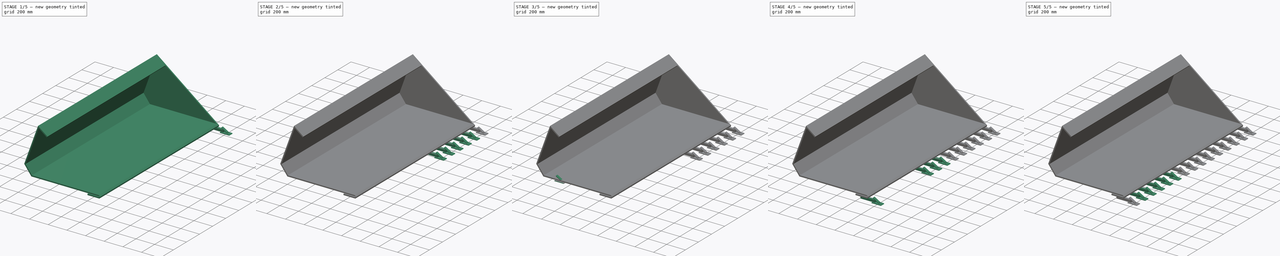
[diagram: build sequence overview — one tinted view per stage of 5, left to right]
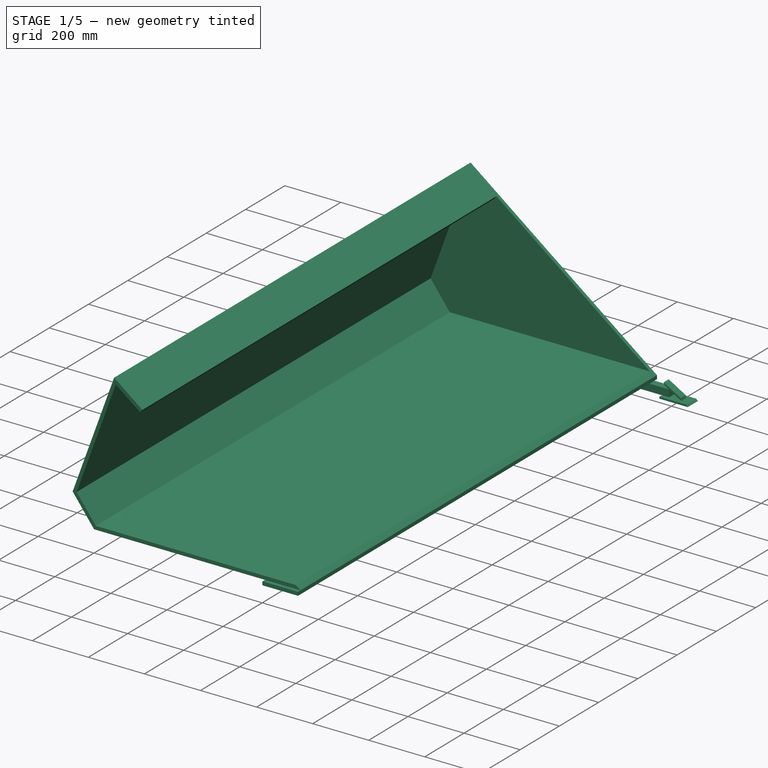
[diagram: stage 1 of 5 — iso view after this stage's code; geometry added in this stage tinted green]
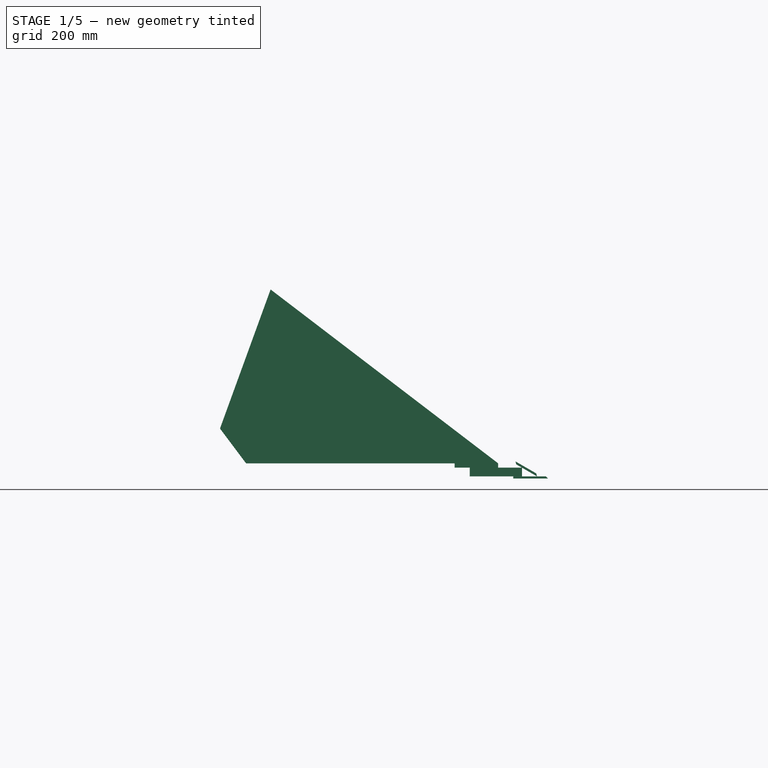
[diagram: stage 1 of 5 — front view after this stage's code; geometry added in this stage tinted green]
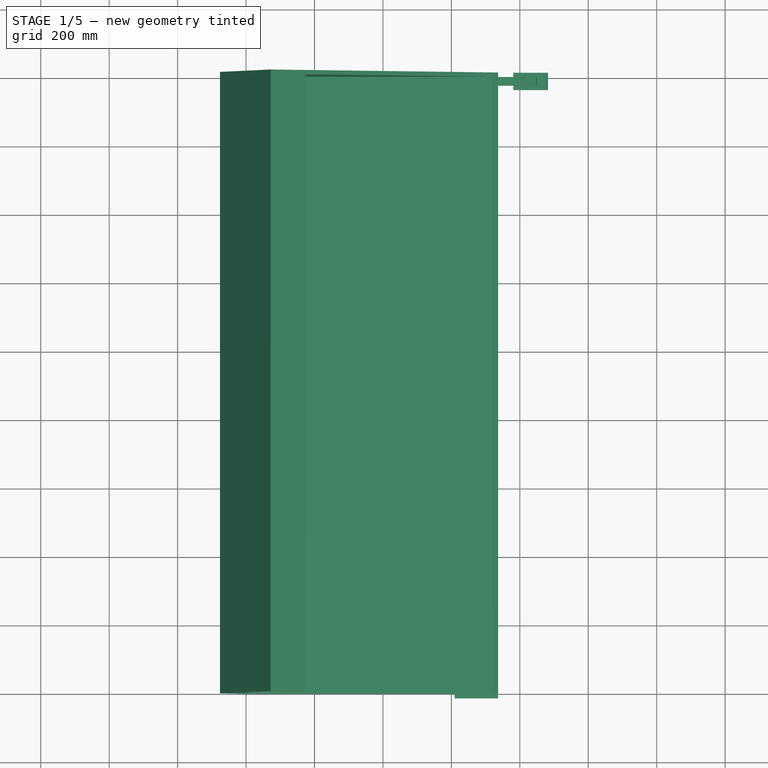
[diagram: stage 1 of 5 — top view after this stage's code; geometry added in this stage tinted green]
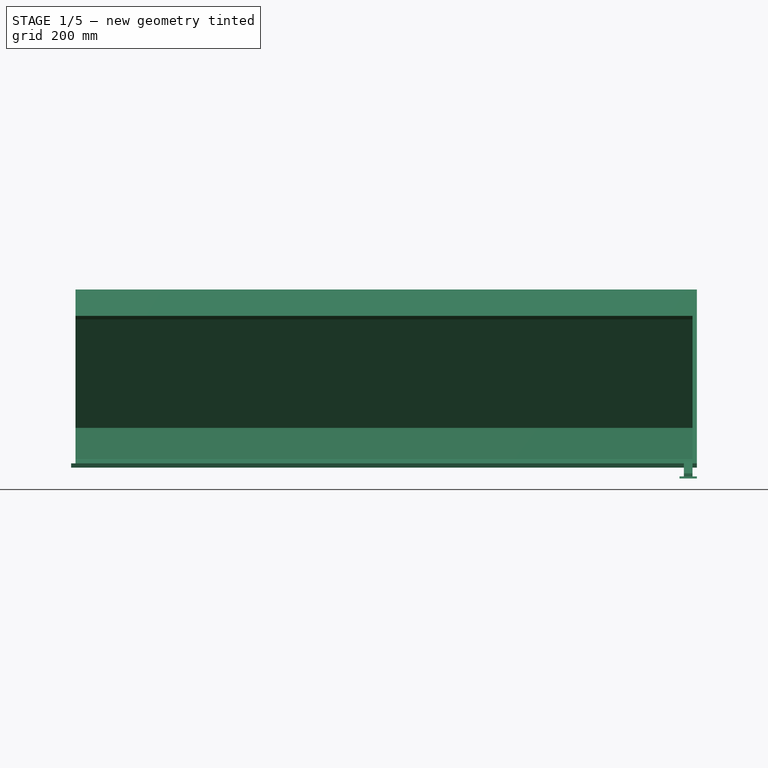
[diagram: stage 1 of 5 — right view after this stage's code; geometry added in this stage tinted green]
FCSTD DOCUMENT  (FreeCAD 0.16R6712 (Git))
Label: LT_72in_bucket
License: All rights reserved
LicenseURL: http://en.wikipedia.org/wiki/All_rights_reserved
objects: Part::MultiFuse×15, Part::Feature×5, App::FeaturePython×5, Part::Box×4, App::DocumentObjectGroup×3, Sketcher::SketchObject×2, Part::Chamfer×2, PartDesign::Pad×2, Part::FeaturePython×1
note: 33 computed .brp shape members not serialized (recipe doc carries the construction recipe); baked Part::Feature solids carry a one-line shape summary decoded from their .brp

FEATURE [PartDesign::Pad] Pad
  Length = 12.7
  Length2 = 100
  Placement = pos=(0,0,0) rot=(1,0,0;1.5708rad)
  Sketch = -> Sketch
  Type = 0
FEATURE [Part::FeaturePython] Clone  label="Clone of Pad"  # Draft clone (typed FeaturePython)
  Objects = -> [Pad]
  Placement = pos=(0,1816.1,0) rot=(1,0,0;1.5708rad)
  Scale = (1,1,1)
FEATURE [Sketcher::SketchObject] Sketch001
  Placement = pos=(0,1803.4,0) rot=(1,0,0;1.5708rad)
  Support = -> Clone [Face6]
  sketch-geometry (10):
    g0: LineSegment StartX=71.7175 StartY=508 StartZ=0 EndX=-76.2 EndY=101.6 EndZ=0
    g1: LineSegment StartX=-76.2 StartY=101.6 StartZ=0 EndX=0 EndY=0 EndZ=0
    g2: LineSegment StartX=0 StartY=0 StartZ=0 EndX=736.6 EndY=0 EndZ=0
    g3: LineSegment StartX=736.6 StartY=0 StartZ=0 EndX=719.978 EndY=12.7 EndZ=0
    g4: LineSegment StartX=719.978 StartY=12.7 StartZ=0 EndX=6.35 EndY=12.7 EndZ=0
    g5: LineSegment StartX=6.35 StartY=12.7 StartZ=0 EndX=-61.9139 EndY=103.718 EndZ=0
    g6: LineSegment StartX=71.7175 StartY=508 StartZ=0 EndX=172.633 EndY=430.896 EndZ=0
    g7: LineSegment StartX=172.633 StartY=430.896 StartZ=0 EndX=164.923 EndY=420.804 EndZ=0
    g8: LineSegment StartX=164.923 StartY=420.804 StartZ=0 EndX=77.7404 EndY=487.416 EndZ=0
    g9: LineSegment StartX=77.7404 StartY=487.416 StartZ=0 EndX=-61.9139 EndY=103.718 EndZ=0
  constraints (12):
    c: Coincident(g0,g1)
    c: Coincident(g1,g2)
    c: Coincident(g2,g3)
    c: Coincident(g3,g4)
    c: Horizontal(g4)
    c: Coincident(g4,g5)
    c: Coincident(g0,g6)
    c: Coincident(g6,g7)
    c: Coincident(g7,g8)
    c: Coincident(g8,g9)
    c: Coincident(g9,g5)
    c: Distance(g6) = 127
FEATURE [PartDesign::Pad] Pad001
  Length = 1803.4
  Length2 = 100
  Placement = pos=(0,1816.1,0) rot=(1,0,0;1.5708rad)
  Sketch = -> Sketch001
  Type = 0
FEATURE [Part::MultiFuse] Fusion015  label="Tooth Bar014"
  Placement = pos=(653.821,1778,-38.1) rot=(0,0,1;0rad)
FEATURE [Part::Box] Box003  label="Cube001"
  Height = 12.7
  Length = 127
  Placement = pos=(609.6,-12.7,-12.7) rot=(0,0,1;0rad)
  Width = 1828.8
FEATURE [App::DocumentObjectGroup] Group  label="Teeth"
  Group = -> [Fusion009,Fusion007,Fusion013,Fusion012,Fusion015,Fusion006,Fusion008,Fusion014,Fusion001,Fusion002,Fusion005,Box003,Fusion003,Fusion004,Fusion010,Fusion011]
FEATURE [App::DocumentObjectGroup] Group001  label="Bucket"
  Group = -> [Clone,Pad,Pad001]
FEATURE [Part::Feature] Fusion016  label="72in bucket"
  Placement = pos=(-1288.89,-2089.48,-1213.68) rot=(0,0,1;0rad)
  shape: bbox 958.6 x 1829 x 552.5 mm, 342 faces, 25 solids (baked)
FEATURE [Part::Feature] Pad001001  label="45in FQA"
  Placement = pos=(-1374.04,-616.281,-1108.83) rot=(-0.171088,0.171088,-0.970288;1.60095rad)
  shape: bbox 218.1 x 1162 x 414.9 mm, 56 faces (baked)
FEATURE [Part::Feature] Fusion004003004003  label="MQA"
  Placement = pos=(-1447.47,-662.644,-1123.92) rot=(-0.171088,0.171088,-0.970288;1.60095rad)
  shape: bbox 244.1 x 375.9 x 422.3 mm, 114 faces (baked)
FEATURE [App::FeaturePython] axialConstraint01  label="FQA-bucket"  # a2plus constraint (typed FeaturePython)
  Object1 = Fusion016
  Object2 = Pad001001
  SubElement1 = Edge15
  SubElement2 = Edge55
  Type = axial
  directionConstraint = 0
  lockRotation = false
FEATURE [App::FeaturePython] planeConstraint01  label="MQA 1"  # a2plus constraint (typed FeaturePython)
  Object1 = Pad001001
  Object2 = Fusion004003004003
  SubElement1 = Face16
  SubElement2 = Face29
  Type = plane
  directionConstraint = 0
  offset = 0
FEATURE [App::FeaturePython] planeConstraint02  label="MQA 2"  # a2plus constraint (typed FeaturePython)
  Object1 = Pad001001
  Object2 = Fusion004003004003
  SubElement1 = Face35
  SubElement2 = Face28
  Type = plane
  directionConstraint = 0
  offset = 0
FEATURE [App::FeaturePython] planeConstraint03  label="MQA 3"  # a2plus constraint (typed FeaturePython)
  Object1 = Fusion004003004003
  Object2 = Pad001001
  SubElement1 = Face5
  SubElement2 = Face18
  Type = plane
  directionConstraint = 1
  offset = 0
FEATURE [Part::Feature] Part__Mirroring001  label="MQA (Mirror #1)"
  Placement = pos=(-1e-12,-2375.56,-2e-12) rot=(0,0,1;0rad)
  shape: bbox 244.1 x 375.9 x 422.3 mm, 114 faces (baked)
FEATURE [App::FeaturePython] circularEdgeConstraint01  label="Mirror MQA"  # a2plus constraint (typed FeaturePython)
  Object1 = Fusion004003004003
  Object2 = Part__Mirroring001
  SubElement1 = Edge21
  SubElement2 = Edge21
  Type = circularEdge
  directionConstraint = 0
  lockRotation = false
  offset = 1143
FEATURE [App::DocumentObjectGroup] Group002  label="Constraints"
  Group = -> [axialConstraint01,planeConstraint01,planeConstraint02,planeConstraint03,circularEdgeConstraint01]
FEATURE [Part::Feature] Compound001  label="LT bucket"
  Placement = pos=(0,-2540,0) rot=(0,0,1;0rad)
  shape: bbox 1072 x 1829 x 552.5 mm, 626 faces, 28 solids (baked)
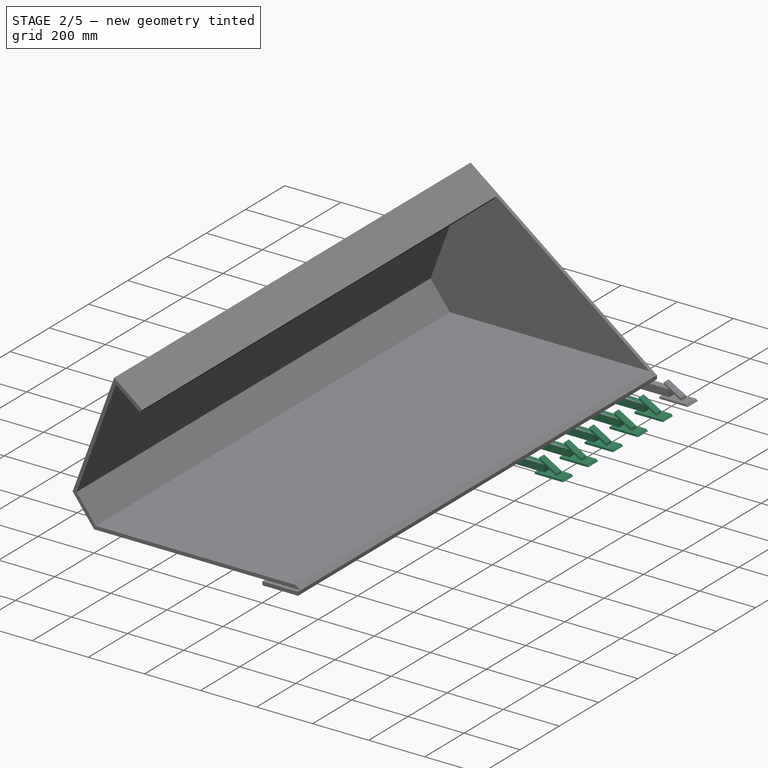
[diagram: stage 2 of 5 — iso view after this stage's code; geometry added in this stage tinted green]
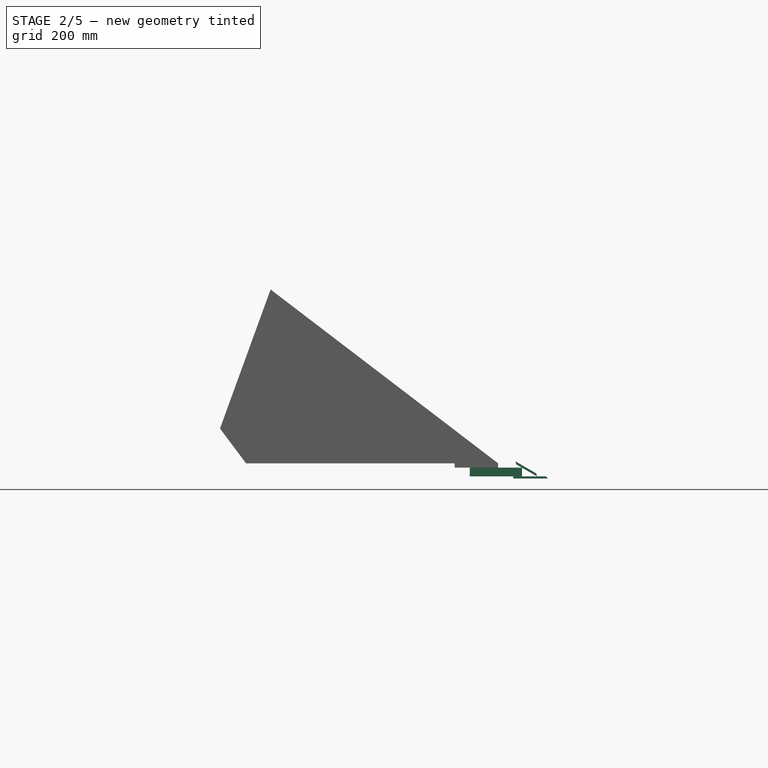
[diagram: stage 2 of 5 — front view after this stage's code; geometry added in this stage tinted green]
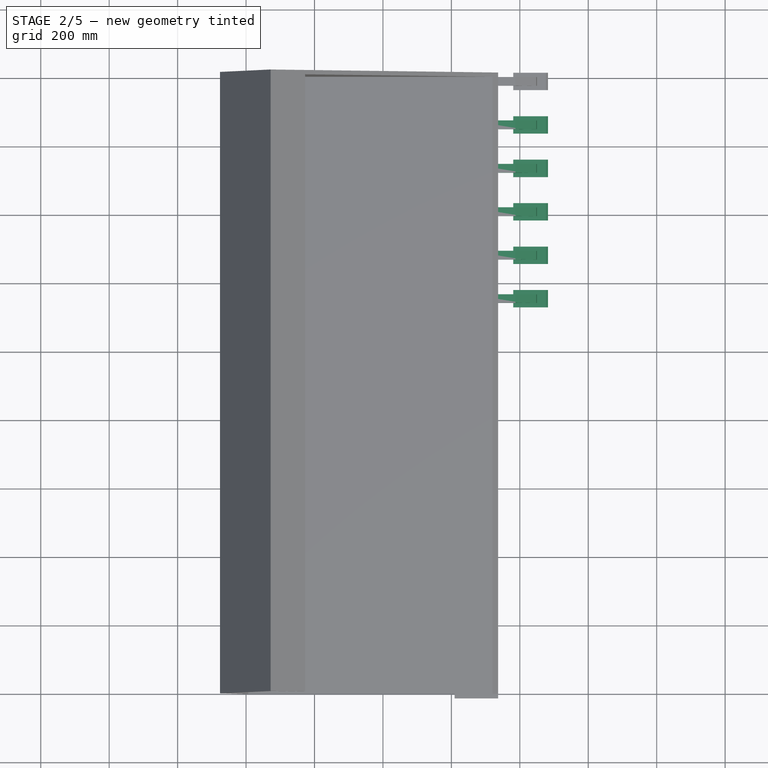
[diagram: stage 2 of 5 — top view after this stage's code; geometry added in this stage tinted green]
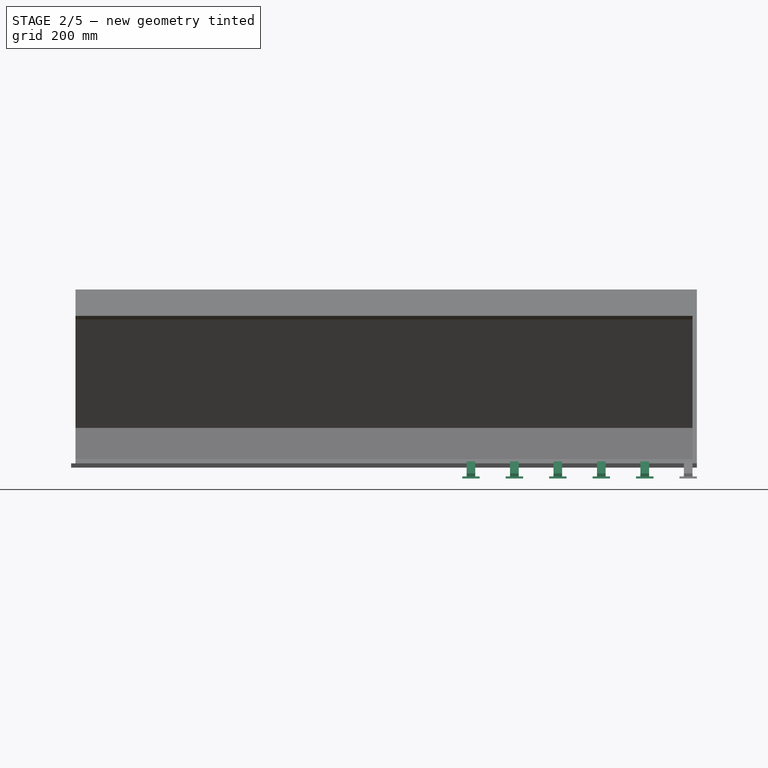
[diagram: stage 2 of 5 — right view after this stage's code; geometry added in this stage tinted green]
FEATURE [Part::MultiFuse] Fusion010  label="Tooth Bar009"
  Placement = pos=(653.821,1143,-38.1) rot=(0,0,1;0rad)
FEATURE [Part::MultiFuse] Fusion011  label="Tooth Bar010"
  Placement = pos=(653.821,1270,-38.1) rot=(0,0,1;0rad)
FEATURE [Part::MultiFuse] Fusion012  label="Tooth Bar011"
  Placement = pos=(653.821,1397,-38.1) rot=(0,0,1;0rad)
FEATURE [Part::MultiFuse] Fusion013  label="Tooth Bar012"
  Placement = pos=(653.821,1524,-38.1) rot=(0,0,1;0rad)
FEATURE [Part::MultiFuse] Fusion014  label="Tooth Bar013"
  Placement = pos=(653.821,1651,-38.1) rot=(0,0,1;0rad)
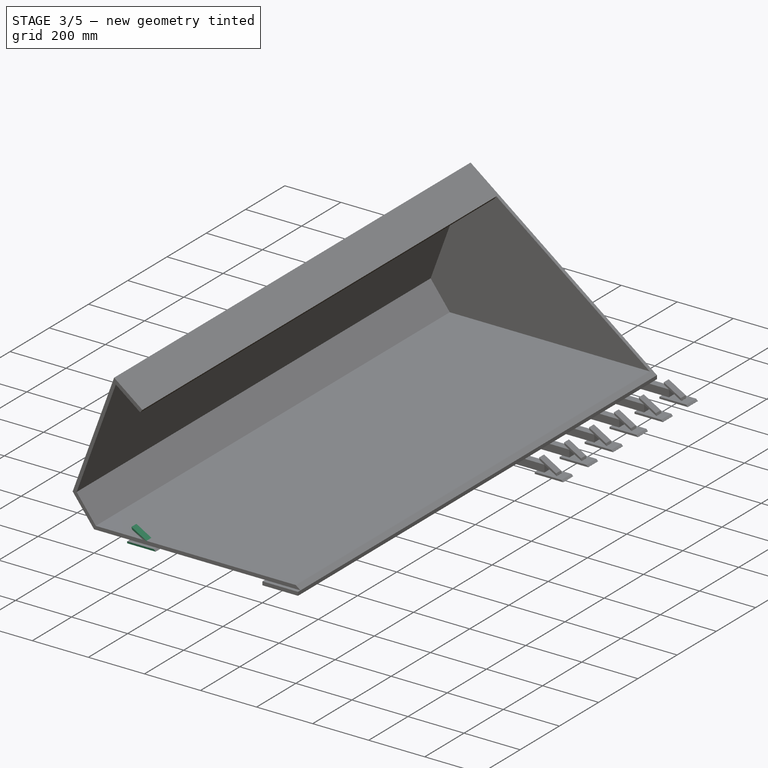
[diagram: stage 3 of 5 — iso view after this stage's code; geometry added in this stage tinted green]
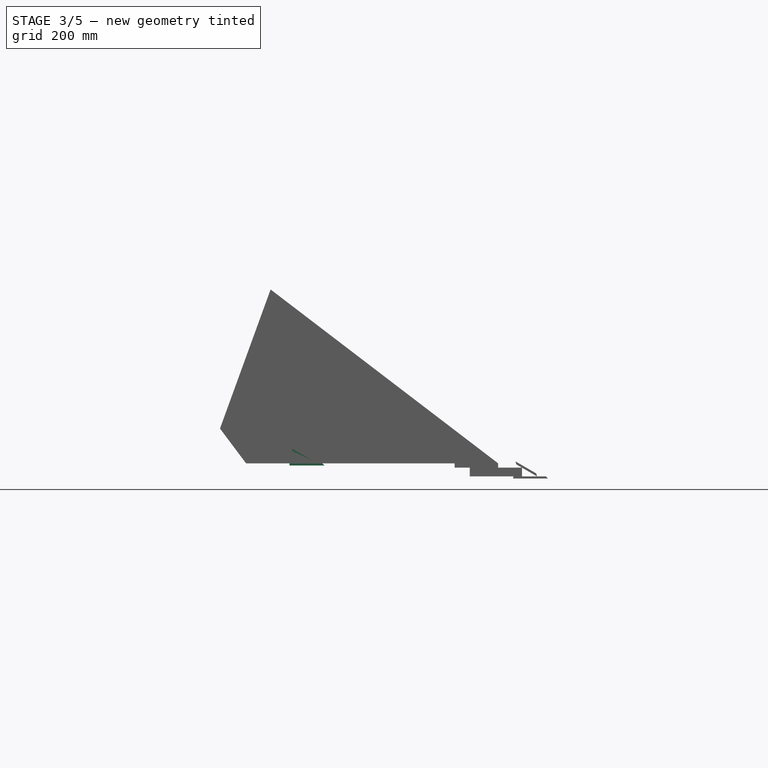
[diagram: stage 3 of 5 — front view after this stage's code; geometry added in this stage tinted green]
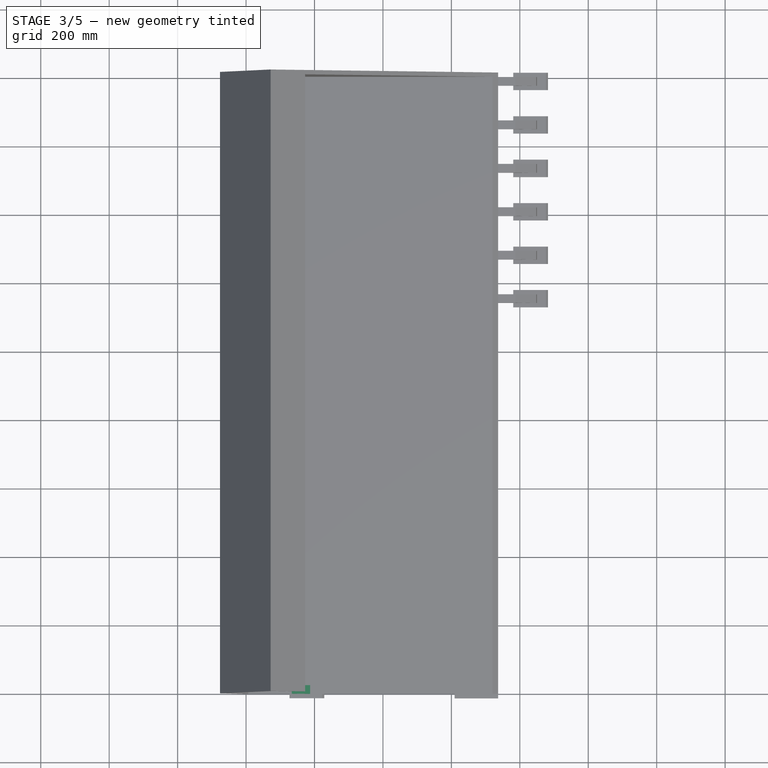
[diagram: stage 3 of 5 — top view after this stage's code; geometry added in this stage tinted green]
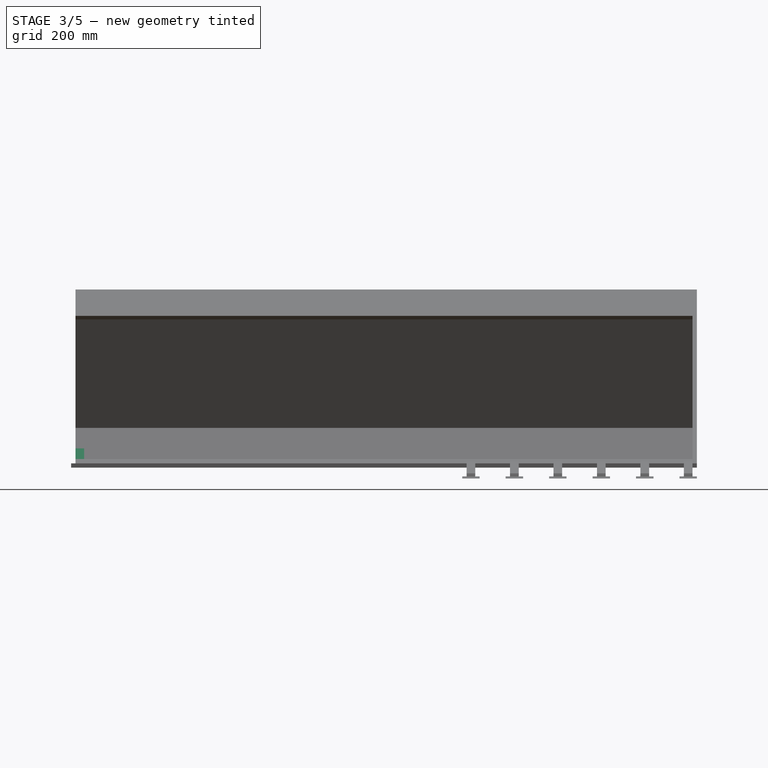
[diagram: stage 3 of 5 — right view after this stage's code; geometry added in this stage tinted green]
FEATURE [Part::Box] Box001  label="Cube"
  Height = 6.35
  Length = 101.6
  Placement = pos=(127,-12.7,-6.35) rot=(0,0,1;0rad)
  Width = 50.8
FEATURE [Part::Box] Box002  label="Cube 01"
  Height = 6.35
  Length = 76.2
  Placement = pos=(130.39,-0.875268,38.108) rot=(0,1,0;0.523599rad)
  Width = 25.4
FEATURE [Part::Chamfer] Chamfer  label="Knife"
  Base = -> Box001
  Edges = 1 edges r=6.1: [Edge6]
FEATURE [Part::Chamfer] Chamfer001  label="Breaker bar"
  Base = -> Box002
  Edges = 2 edges r=6.1: [Edge4,Edge6]
  Placement = pos=(0,0.875268,0) rot=(0,0,1;0rad)
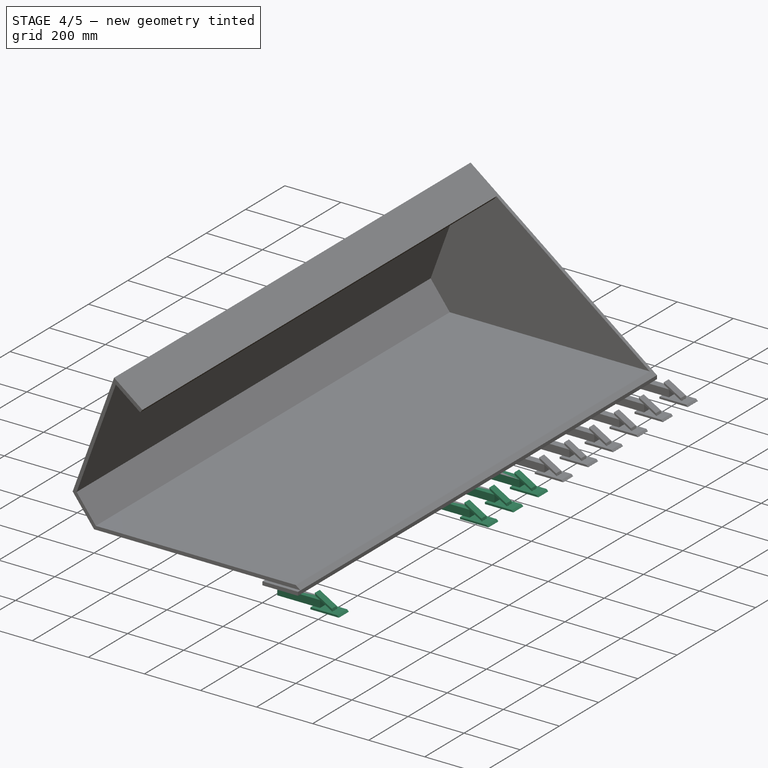
[diagram: stage 4 of 5 — iso view after this stage's code; geometry added in this stage tinted green]
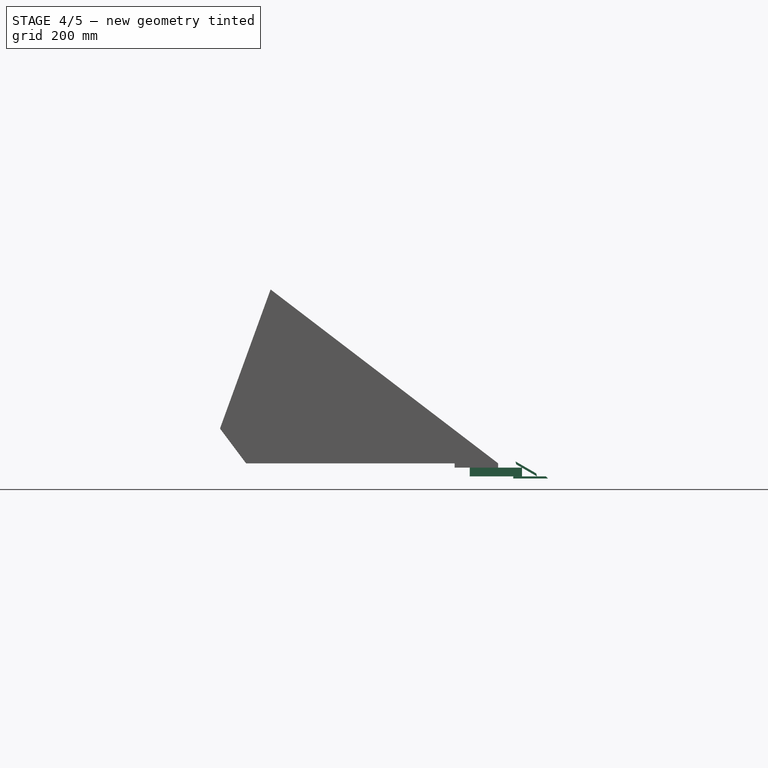
[diagram: stage 4 of 5 — front view after this stage's code; geometry added in this stage tinted green]
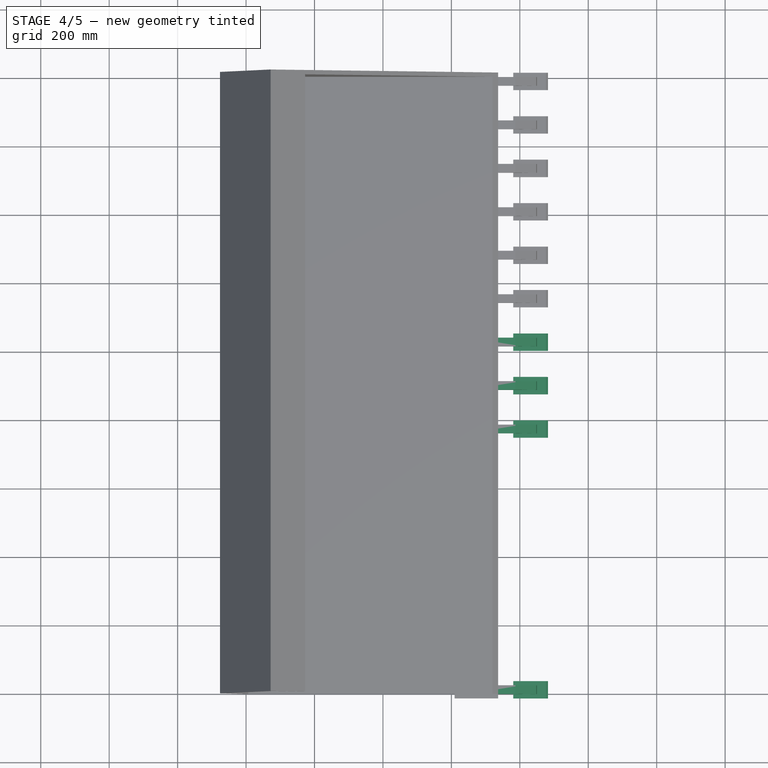
[diagram: stage 4 of 5 — top view after this stage's code; geometry added in this stage tinted green]
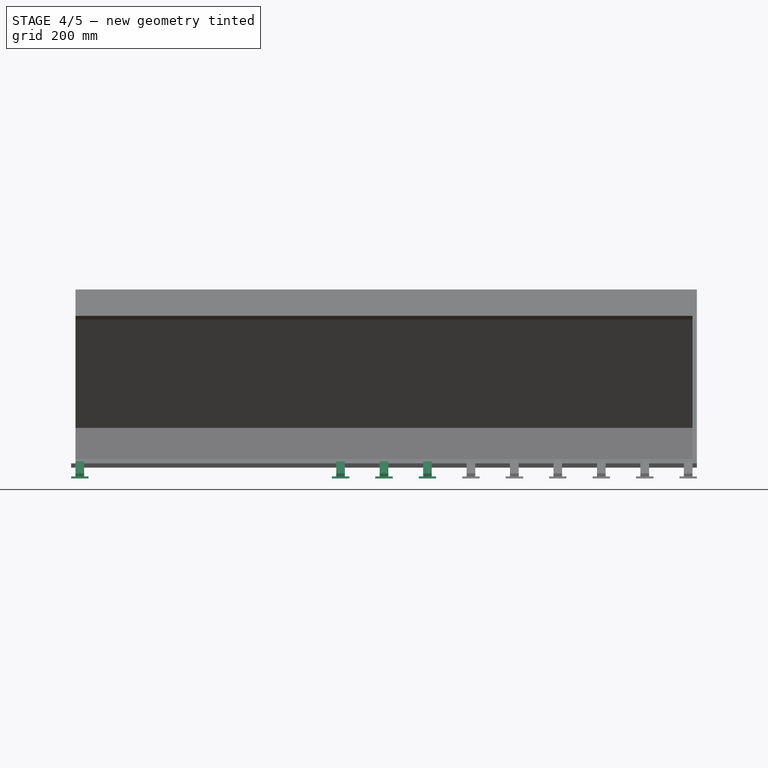
[diagram: stage 4 of 5 — right view after this stage's code; geometry added in this stage tinted green]
FEATURE [Part::MultiFuse] Fusion006  label="Tooth Bar006"
  Placement = pos=(653.821,762,-38.1001) rot=(0,0,1;0rad)
FEATURE [Part::MultiFuse] Fusion007  label="Tooth Bar007"
  Placement = pos=(653.821,889,-38.1001) rot=(0,0,1;0rad)
FEATURE [Sketcher::SketchObject] Sketch
  Placement = pos=(0,0,0) rot=(1,0,0;1.5708rad)
  sketch-geometry (4):
    g0: LineSegment StartX=736.6 StartY=0 StartZ=0 EndX=71.7175 EndY=508 EndZ=0
    g1: LineSegment StartX=71.7175 StartY=508 StartZ=0 EndX=-76.2 EndY=101.6 EndZ=0
    g2: LineSegment StartX=-76.2 StartY=101.6 StartZ=0 EndX=0 EndY=0 EndZ=0
    g3: LineSegment StartX=0 StartY=0 StartZ=0 EndX=736.6 EndY=0 EndZ=0
  constraints (11):
    c: Coincident(g0,g1)
    c: Coincident(g1,g2)
    c: DistanceY(g-1,g0) = 508
    c: Angle(g-2,g1) = 2.79253
    c: DistanceX(g1) = -76.2
    c: DistanceY(g1) = 101.6
    c: Coincident(g3,g-1)
    c: Coincident(g3,g0)
    c: Horizontal(g3)
    c: Distance(g3) = 736.6
    c: Coincident(g2,g3)
FEATURE [Part::MultiFuse] Fusion008  label="Tooth Bar008"
  Placement = pos=(653.821,1016,-38.1001) rot=(0,0,1;0rad)
FEATURE [Part::Box] Box  label="Shaft"
  Height = 25.4
  Length = 152.4
  Width = 25.4
FEATURE [Part::MultiFuse] Fusion009  label="Tooth Bar"
  Placement = pos=(653.821,5.34229e-05,-38.1001) rot=(0,0,1;0rad)
  Shapes = -> [Box,Chamfer001,Chamfer]
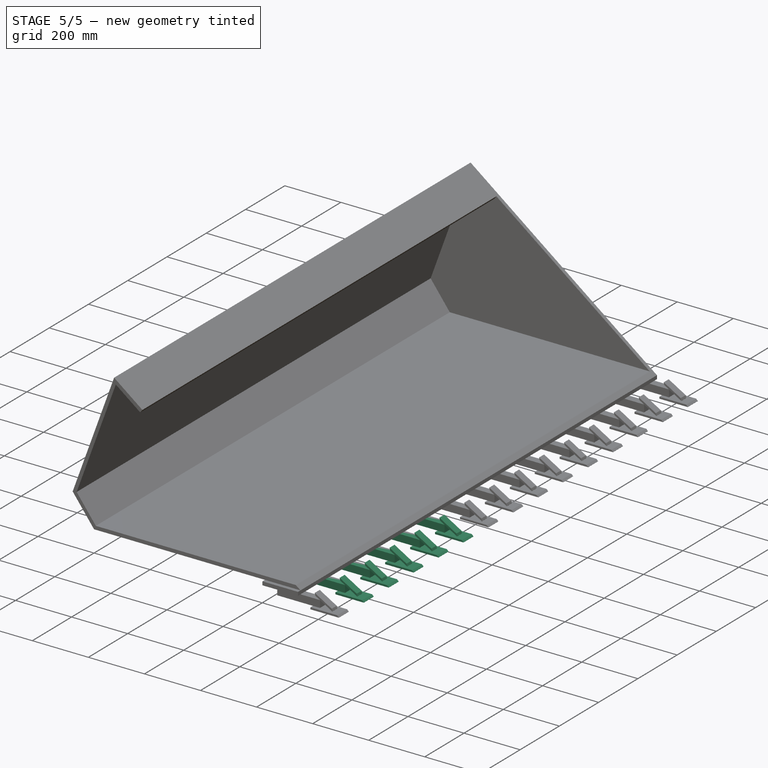
[diagram: stage 5 of 5 — iso view after this stage's code; geometry added in this stage tinted green]
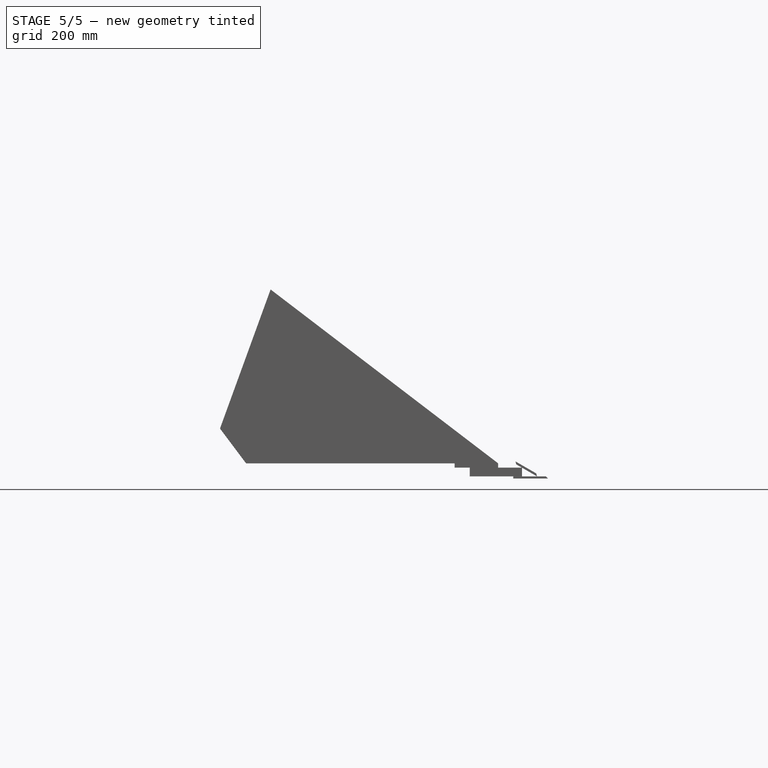
[diagram: stage 5 of 5 — front view after this stage's code; geometry added in this stage tinted green]
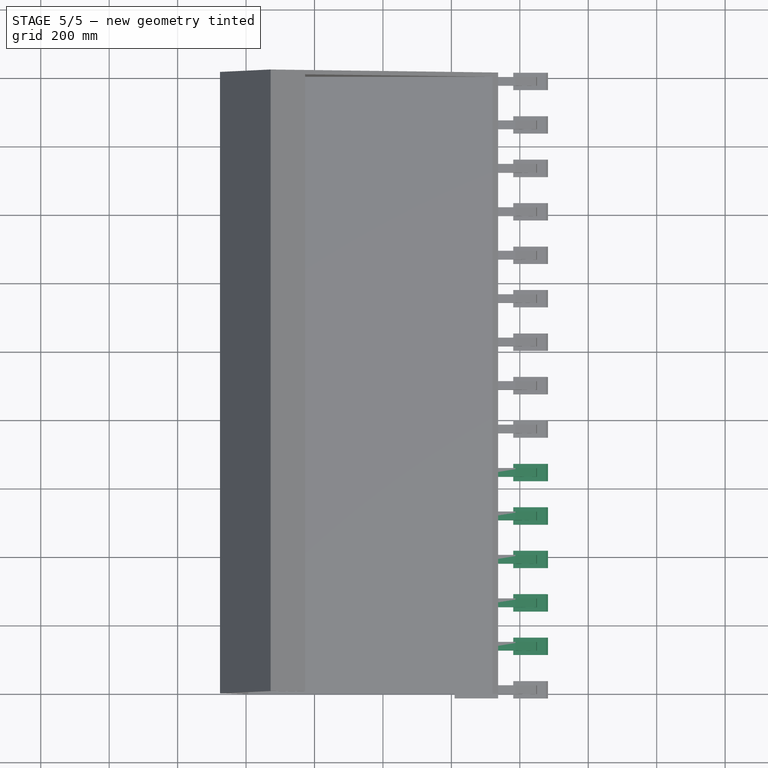
[diagram: stage 5 of 5 — top view after this stage's code; geometry added in this stage tinted green]
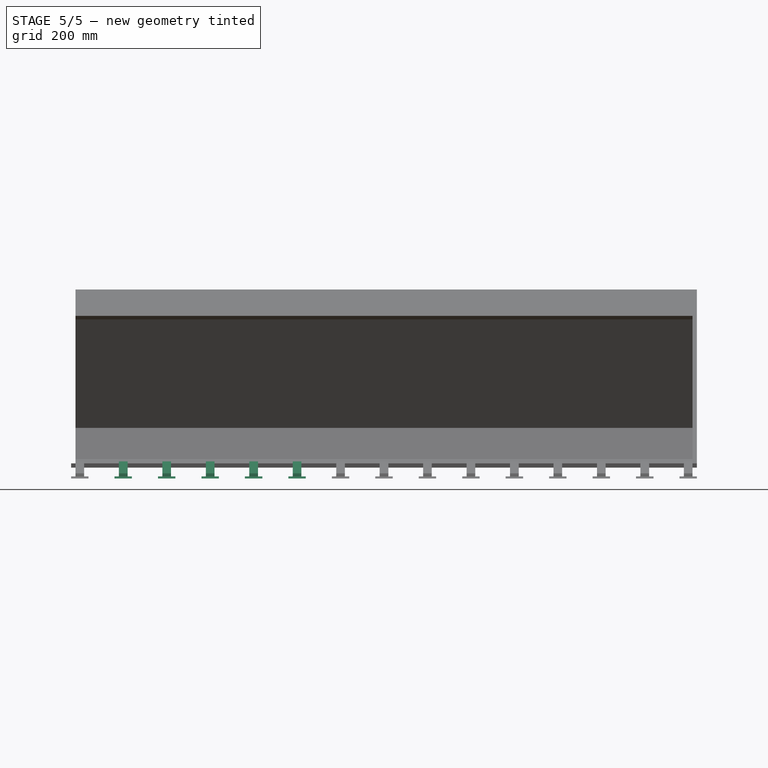
[diagram: stage 5 of 5 — right view after this stage's code; geometry added in this stage tinted green]
FEATURE [Part::MultiFuse] Fusion001  label="Tooth Bar001"
  Placement = pos=(653.821,127,-38.1001) rot=(0,0,1;0rad)
FEATURE [Part::MultiFuse] Fusion002  label="Tooth Bar002"
  Placement = pos=(653.821,254,-38.1001) rot=(0,0,1;0rad)
FEATURE [Part::MultiFuse] Fusion003  label="Tooth Bar003"
  Placement = pos=(653.821,381,-38.1001) rot=(0,0,1;0rad)
FEATURE [Part::MultiFuse] Fusion004  label="Tooth Bar004"
  Placement = pos=(653.821,508,-38.1001) rot=(0,0,1;0rad)
FEATURE [Part::MultiFuse] Fusion005  label="Tooth Bar005"
  Placement = pos=(653.821,635,-38.1001) rot=(0,0,1;0rad)
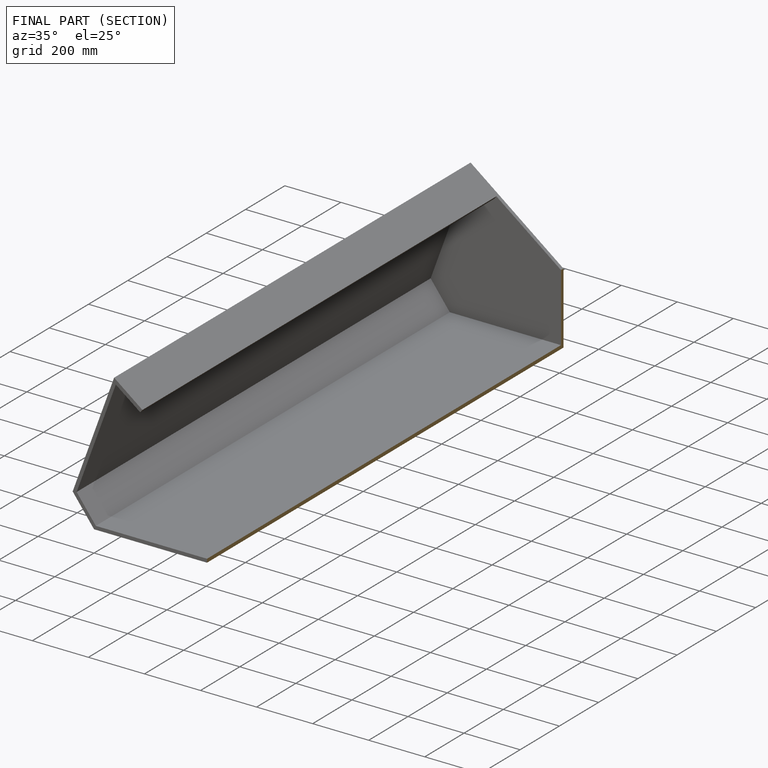
[diagram: finished part — half-section view (interior)]
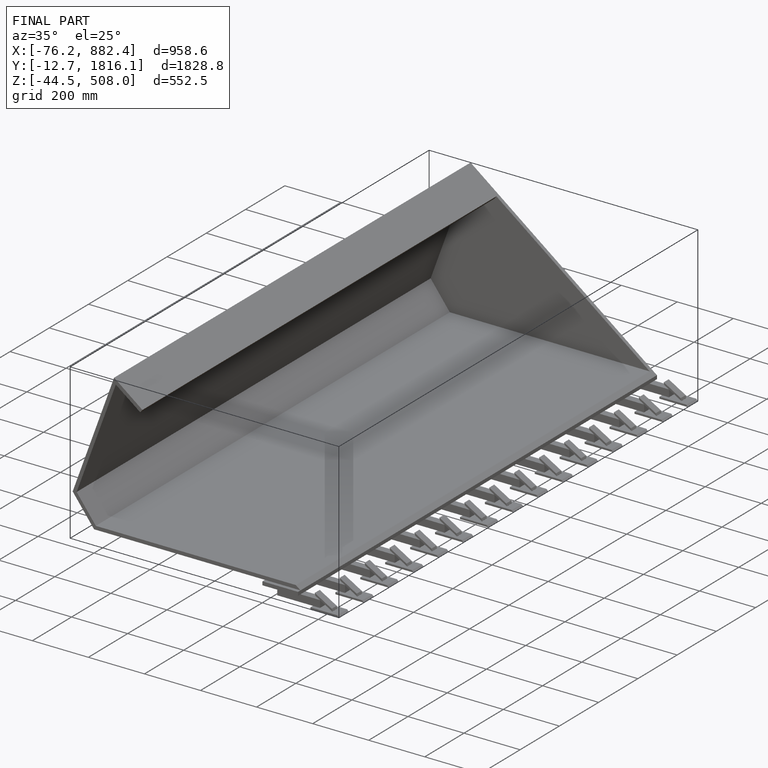
[diagram: finished part — iso view with bounding-box wireframe]
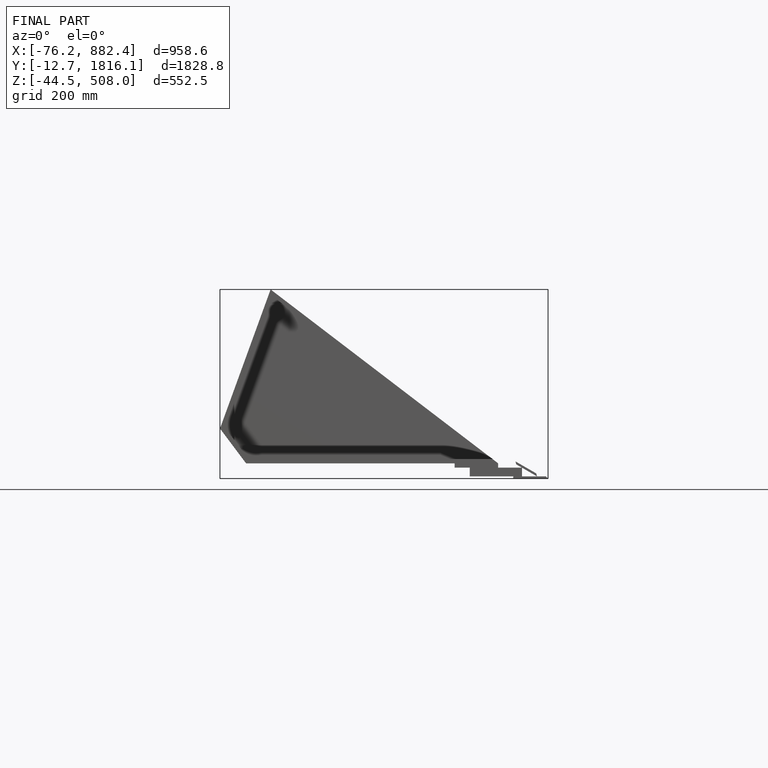
[diagram: finished part — front view with bounding-box wireframe]
